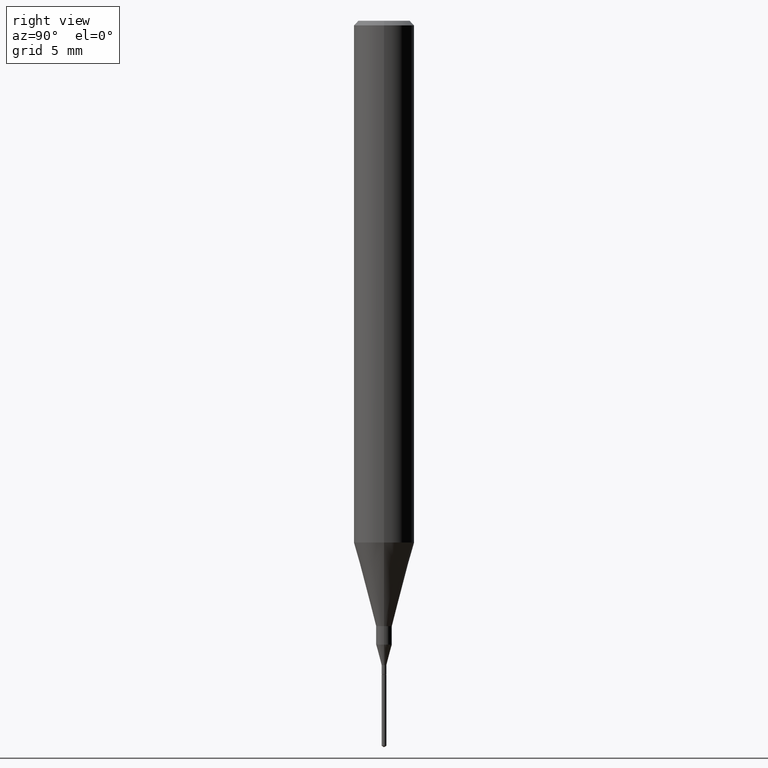
[diagram: clean part render]
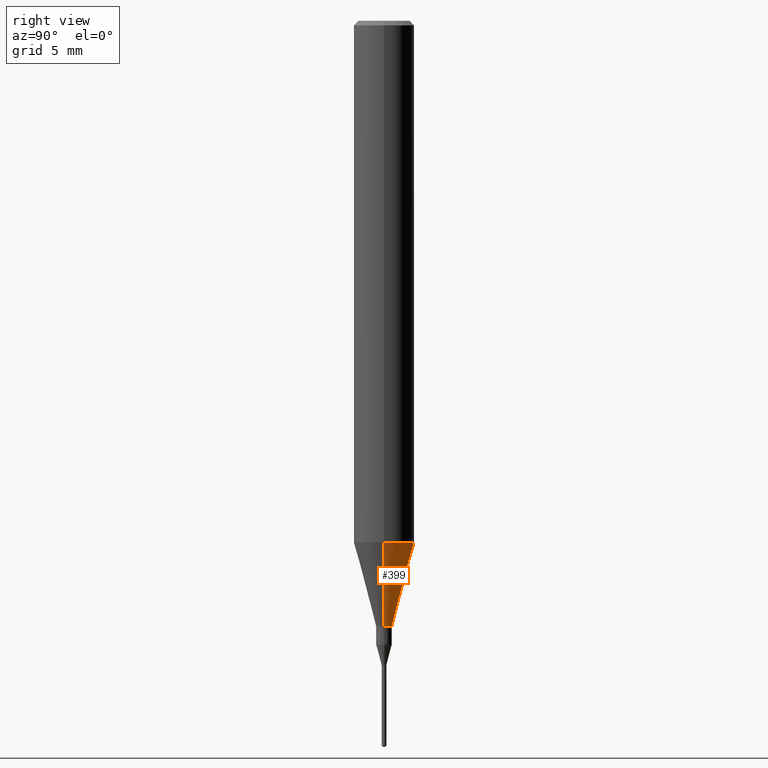
[diagram: same view with one face highlighted and labeled with its STEP entity id]
A machine part, right view. The second image highlights one B-rep face of the part: STEP entity #399.
In plain terms, the highlighted conical surface has half-angle 15 deg.
Its self-contained STEP definition (entity closure, byte-faithful):
#31 = CIRCLE ( 'NONE', #372, 0.01624999999999999709 ) ;
#47 = EDGE_LOOP ( 'NONE', ( #94, #442, #295, #315 ) ) ;
#55 = LINE ( 'NONE', #234, #418 ) ;
#94 = ORIENTED_EDGE ( 'NONE', *, *, #112, .T. ) ;
#112 = EDGE_CURVE ( 'NONE', #114, #476, #31, .T. ) ;
#114 = VERTEX_POINT ( 'NONE', #151 ) ;
#143 = AXIS2_PLACEMENT_3D ( 'NONE', #322, #585, #335 ) ;
#146 = EDGE_CURVE ( 'NONE', #476, #373, #55, .T. ) ;
#151 = CARTESIAN_POINT ( 'NONE',  ( 0.01624999999999999709, -4.477824817066334148E-15, -1.250000000000000000 ) ) ;
#152 = CARTESIAN_POINT ( 'NONE',  ( -0.01624999999999999709, -4.315298589681791643E-15, -1.250000000000000000 ) ) ;
#160 = DIRECTION ( 'NONE',  ( -0.2588190451025214611, 5.211531920934551042E-15, 0.9659258262890682012 ) ) ;
#162 = CIRCLE ( 'NONE', #143, 0.06250000000000012490 ) ;
#185 = DIRECTION ( 'NONE',  ( -2.445468806185136597E-29, 3.491481338843145583E-15, 1.000000000000000000 ) ) ;
#234 = CARTESIAN_POINT ( 'NONE',  ( -0.06250000000000012490, -3.317607122755211895E-15, -1.077392650149939346 ) ) ;
#236 = CARTESIAN_POINT ( 'NONE',  ( 2.634730117954813298E-29, -3.761696332605275695E-15, -1.077392650149939346 ) ) ;
#242 = DIRECTION ( 'NONE',  ( 1.000000000000000000, -6.982962677686288799E-15, 0.000000000000000000 ) ) ;
#260 = VERTEX_POINT ( 'NONE', #475 ) ;
#274 = DIRECTION ( 'NONE',  ( 1.000000000000000000, -6.982962677686264344E-15, 0.000000000000000000 ) ) ;
#282 = CARTESIAN_POINT ( 'NONE',  ( 3.056836007731421306E-29, -4.364351673553932471E-15, -1.250000000000000000 ) ) ;
#290 = VECTOR ( 'NONE', #349, 39.37007874015747433 ) ;
#295 = ORIENTED_EDGE ( 'NONE', *, *, #508, .F. ) ;
#315 = ORIENTED_EDGE ( 'NONE', *, *, #365, .F. ) ;
#321 = CONICAL_SURFACE ( 'NONE', #573, 0.06250000000000012490, 0.2617993877991501295 ) ;
#322 = CARTESIAN_POINT ( 'NONE',  ( 2.634730117954813298E-29, -3.761696332605275695E-15, -1.077392650149939346 ) ) ;
#335 = DIRECTION ( 'NONE',  ( 1.000000000000000000, -6.982962677686264344E-15, 0.000000000000000000 ) ) ;
#349 = DIRECTION ( 'NONE',  ( 0.2588190451025214611, 1.565188264969621573E-15, 0.9659258262890682012 ) ) ;
#365 = EDGE_CURVE ( 'NONE', #114, #260, #559, .T. ) ;
#372 = AXIS2_PLACEMENT_3D ( 'NONE', #282, #430, #242 ) ;
#373 = VERTEX_POINT ( 'NONE', #521 ) ;
#399 = ADVANCED_FACE ( 'NONE', ( #501 ), #321, .T. ) ;
#418 = VECTOR ( 'NONE', #160, 39.37007874015747433 ) ;
#430 = DIRECTION ( 'NONE',  ( -2.445468806185136597E-29, 3.491481338843145583E-15, 1.000000000000000000 ) ) ;
#442 = ORIENTED_EDGE ( 'NONE', *, *, #146, .T. ) ;
#475 = CARTESIAN_POINT ( 'NONE',  ( 0.06250000000000012490, -4.198131499960668153E-15, -1.077392650149939346 ) ) ;
#476 = VERTEX_POINT ( 'NONE', #152 ) ;
#501 = FACE_OUTER_BOUND ( 'NONE', #47, .T. ) ;
#508 = EDGE_CURVE ( 'NONE', #260, #373, #162, .T. ) ;
#521 = CARTESIAN_POINT ( 'NONE',  ( -0.06250000000000012490, -3.317607122755211895E-15, -1.077392650149939346 ) ) ;
#530 = CARTESIAN_POINT ( 'NONE',  ( 0.06250000000000012490, -4.198131499960668153E-15, -1.077392650149939346 ) ) ;
#559 = LINE ( 'NONE', #530, #290 ) ;
#573 = AXIS2_PLACEMENT_3D ( 'NONE', #236, #185, #274 ) ;
#585 = DIRECTION ( 'NONE',  ( -2.445468806185136597E-29, 3.491481338843145583E-15, 1.000000000000000000 ) ) ;